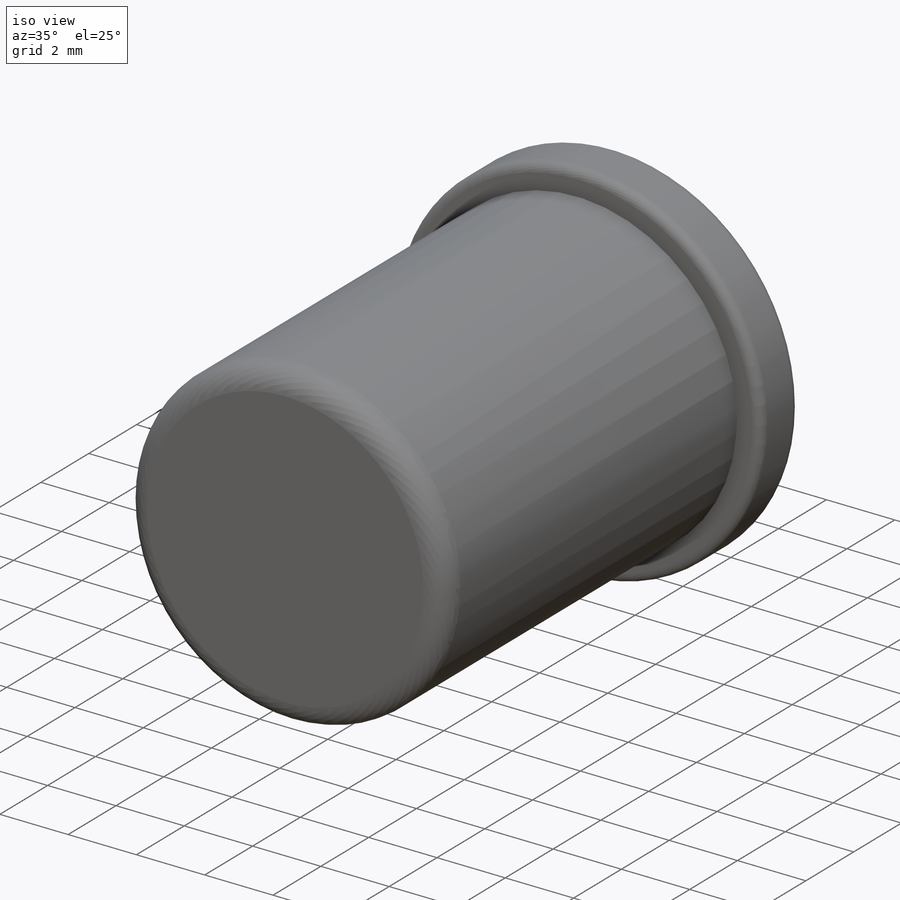
[diagram: iso view]
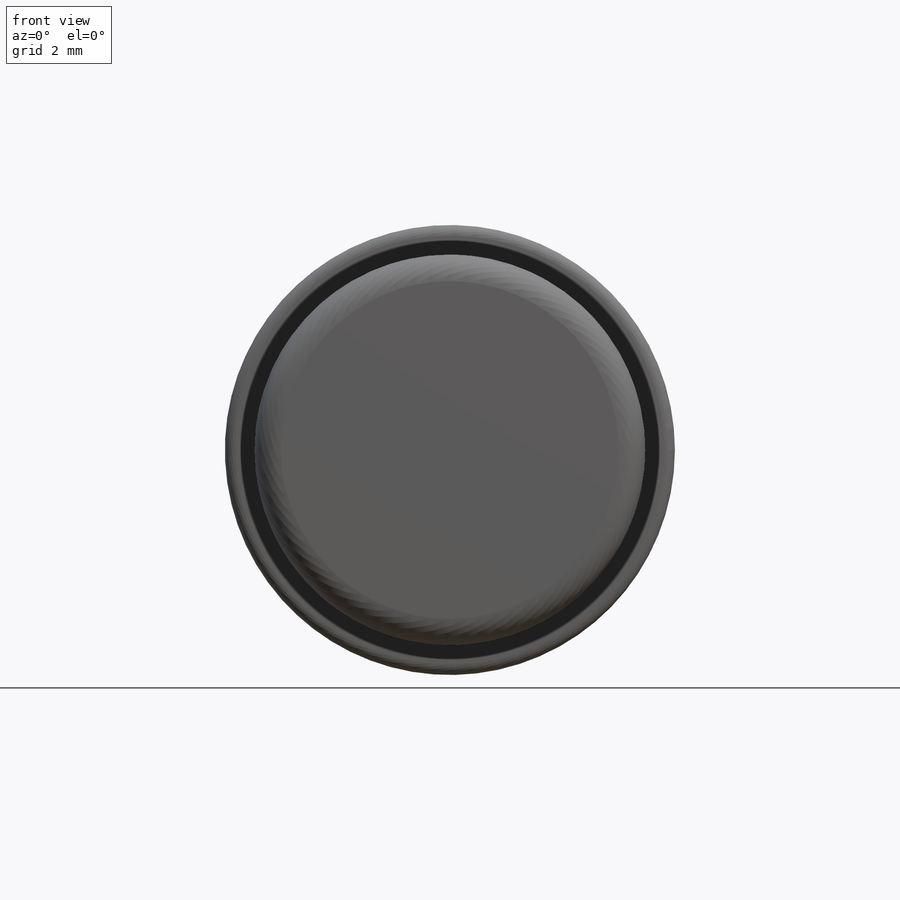
[diagram: front view]
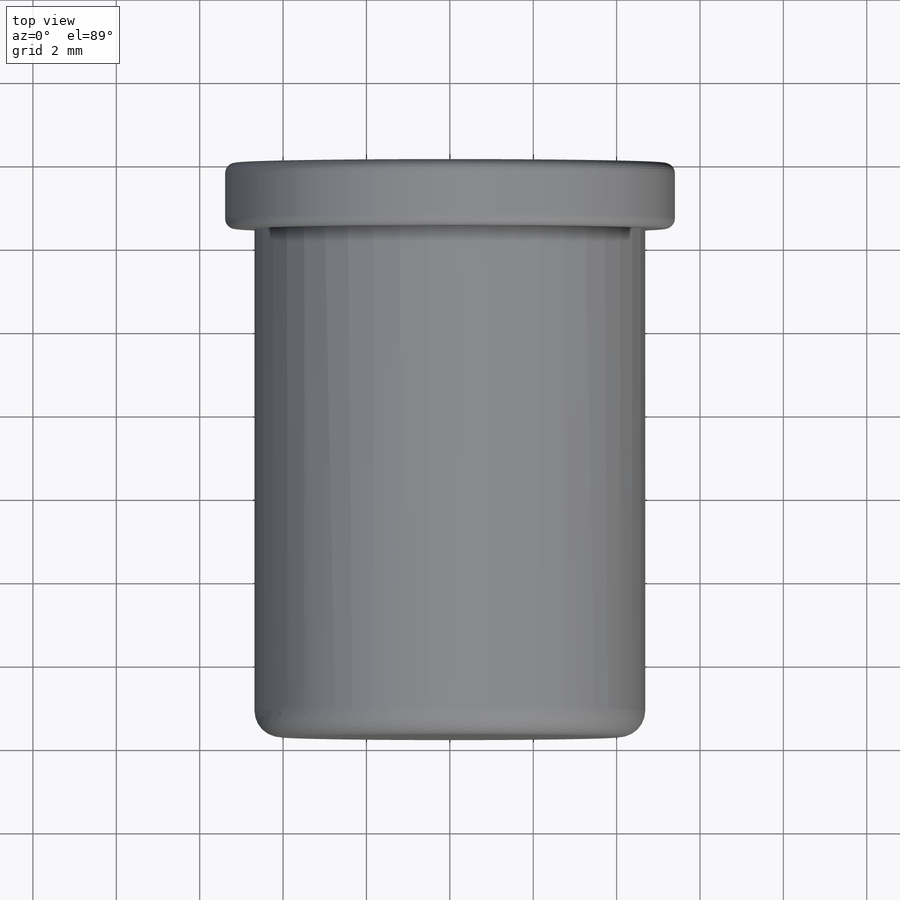
[diagram: top view]
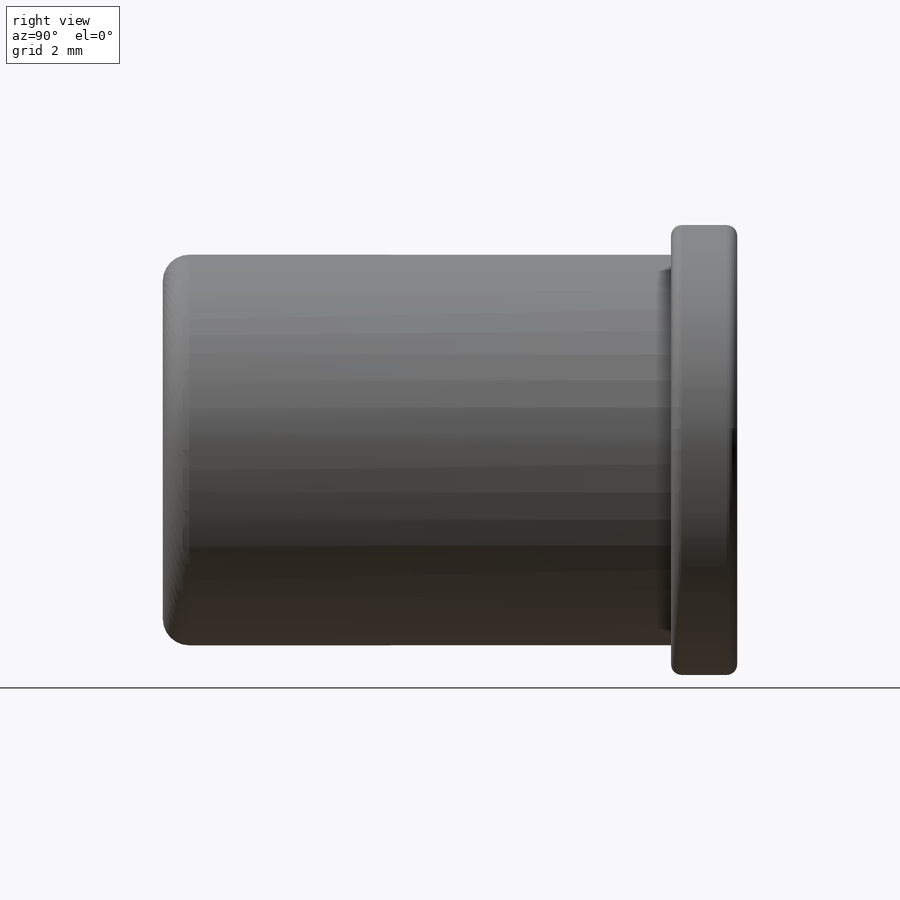
[diagram: right view]
SOLIDWORKS PART (.sldprt)
format: sldprt  version: not decoded by parser v0  size: 228,352 bytes
history: native  units: mm
features: sketch x2, extrude x2, fillet x2, material x1 (+16 scaffold rows collapsed)
feature tree (23):
  scaffold x16  (default folders/planes/origin — collapsed)
  material  "ABS"
  sketch  "Sketch1"  dims[D1=10.795mm]
  extrude  "Extrude1"  Depth=1.5875mm
  sketch  "Sketch2"  dims[D1=9.3726mm]
  extrude  "Extrude2"  Depth=12.192mm
  fillet  "Fillet1"  Radius=0.635mm
  fillet  "Fillet2"  Radius=0.254mm
decode coverage: 6 of 6 modeling features carry decoded parameters
note: suppression state not decoded; provenance and decode notes live in map.json
